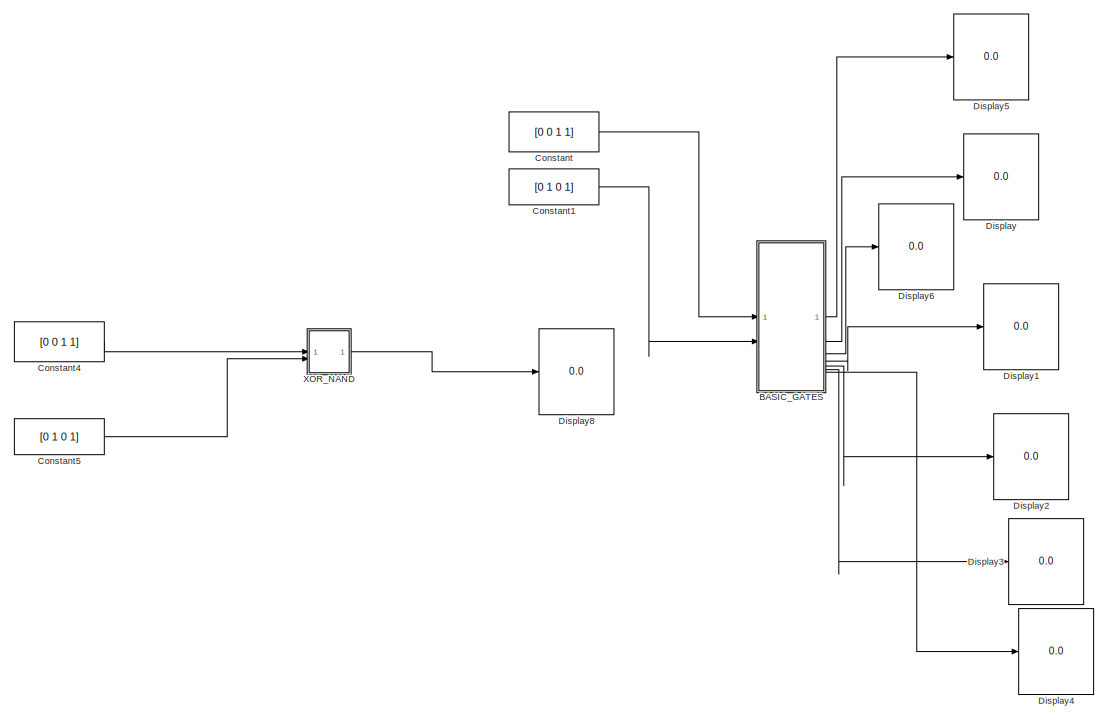
[diagram: root canvas - part 1/5, top left region]
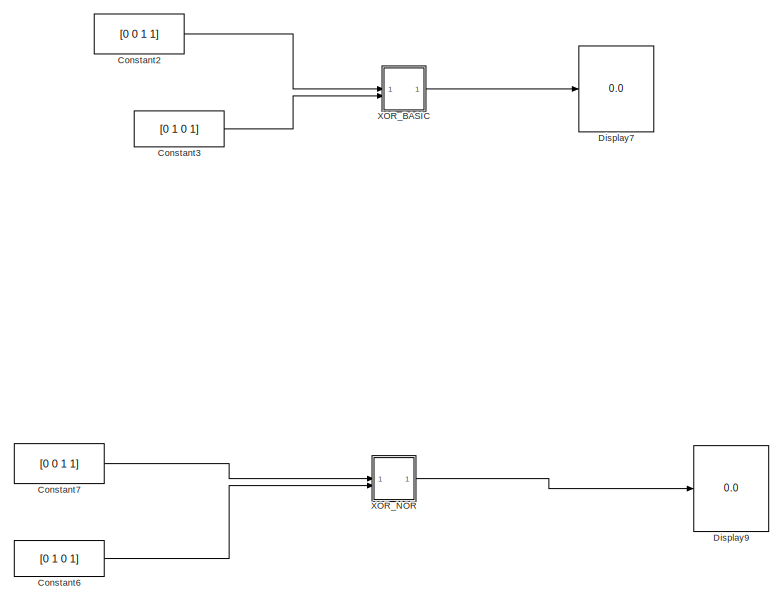
[diagram: root canvas - part 2/5, top center region]
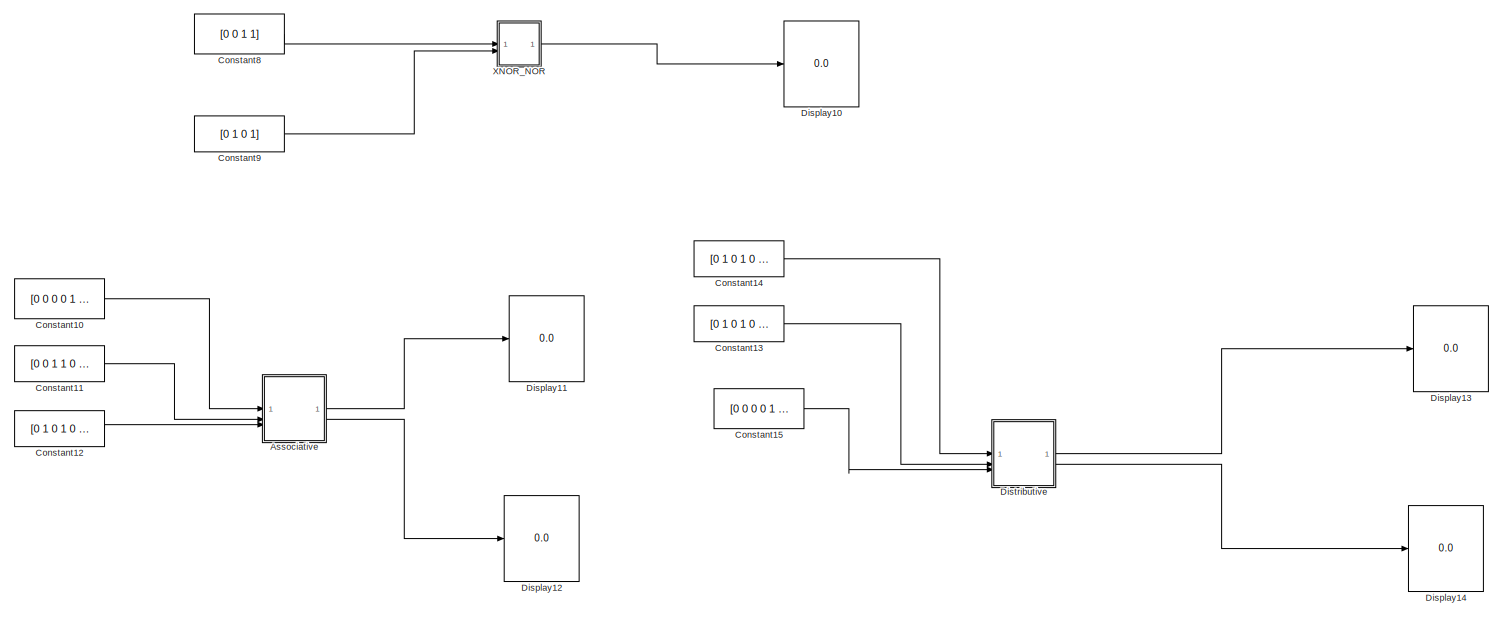
[diagram: root canvas - part 3/5, middle right region]
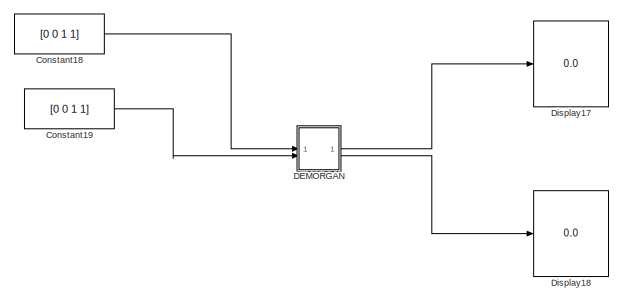
[diagram: root canvas - part 4/5, bottom center region]
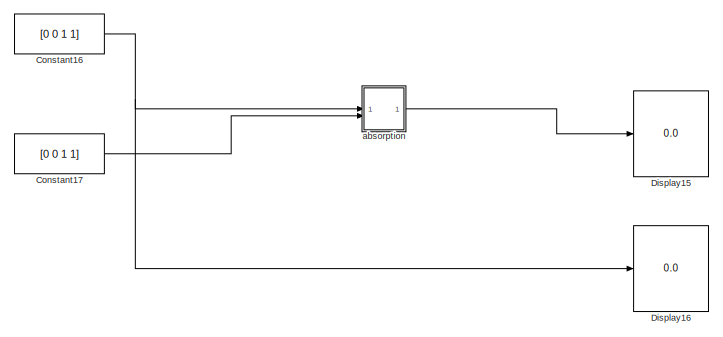
[diagram: root canvas - part 5/5, bottom left region]
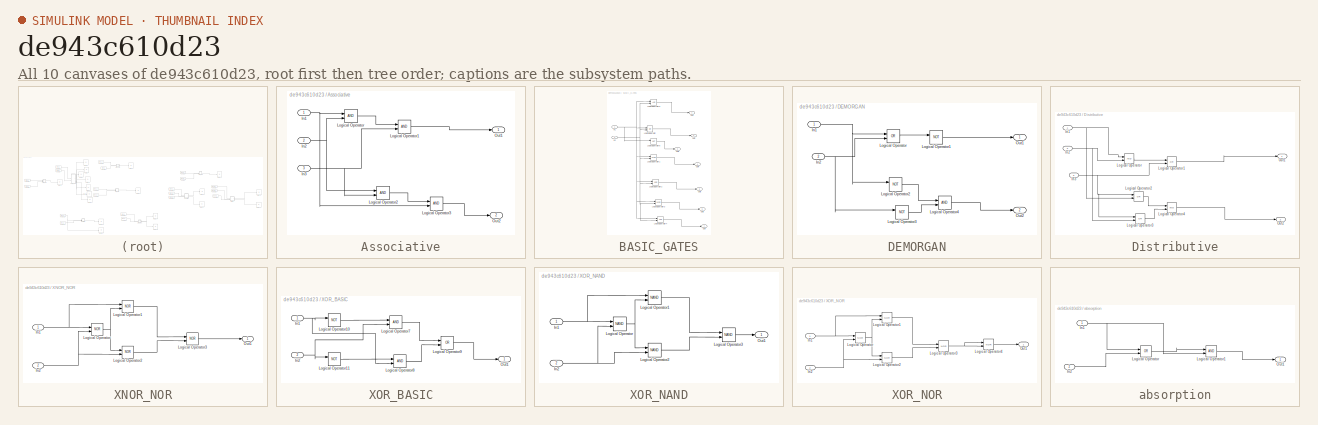
[diagram: thumbnail index - all 10 canvases of the model, root first then tree order]
MODEL slx_de943c610d23
KIND model
CONFIG AbsTol = auto
CONFIG EnableMultiTasking = off
CONFIG FixedStep = auto
CONFIG MaxStep = auto
CONFIG MinStep = auto
CONFIG RelTol = 1e-3
CONFIG SampleTimeConstraint = Unconstrained
CONFIG SolverName = VariableStepAuto
CONFIG StartTime = 0.0
CONFIG StopTime = 10.0
BLOCK [SubSystem] Associative
BLOCK [Inport] Associative/In1
BLOCK [Inport] Associative/In2
  Port = 2
BLOCK [Inport] Associative/In3
  Port = 3
BLOCK [Logic] Associative/Logical Operator
  AllPortsSameDT = off
  OutDataTypeStr = boolean
BLOCK [Logic] Associative/Logical Operator1
  AllPortsSameDT = off
  OutDataTypeStr = boolean
BLOCK [Logic] Associative/Logical Operator2
  AllPortsSameDT = off
  OutDataTypeStr = boolean
BLOCK [Logic] Associative/Logical Operator3
  AllPortsSameDT = off
  OutDataTypeStr = boolean
BLOCK [Outport] Associative/Out1
BLOCK [Outport] Associative/Out2
  Port = 2
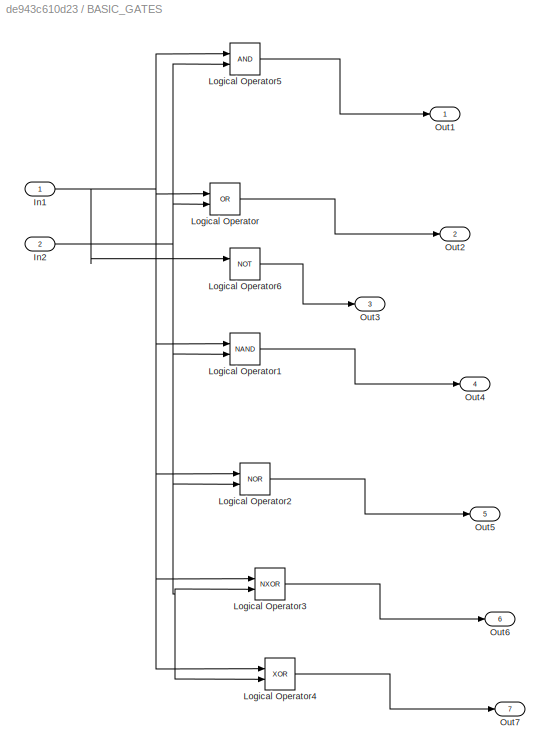
BLOCK [SubSystem] BASIC_GATES
BLOCK [Inport] BASIC_GATES/In1
BLOCK [Inport] BASIC_GATES/In2
  Port = 2
BLOCK [Logic] BASIC_GATES/Logical Operator
  AllPortsSameDT = off
  IconShape = distinctive
  Operator = OR
  OutDataTypeStr = boolean
BLOCK [Logic] BASIC_GATES/Logical Operator1
  AllPortsSameDT = off
  IconShape = distinctive
  Operator = NAND
  OutDataTypeStr = boolean
BLOCK [Logic] BASIC_GATES/Logical Operator2
  AllPortsSameDT = off
  IconShape = distinctive
  Operator = NOR
  OutDataTypeStr = boolean
BLOCK [Logic] BASIC_GATES/Logical Operator3
  AllPortsSameDT = off
  IconShape = distinctive
  Operator = NXOR
  OutDataTypeStr = boolean
BLOCK [Logic] BASIC_GATES/Logical Operator4
  AllPortsSameDT = off
  IconShape = distinctive
  Operator = XOR
  OutDataTypeStr = boolean
BLOCK [Logic] BASIC_GATES/Logical Operator5
  AllPortsSameDT = off
  IconShape = distinctive
  OutDataTypeStr = boolean
BLOCK [Logic] BASIC_GATES/Logical Operator6
  AllPortsSameDT = off
  IconShape = distinctive
  Operator = NOT
  OutDataTypeStr = boolean
BLOCK [Outport] BASIC_GATES/Out1
BLOCK [Outport] BASIC_GATES/Out2
  Port = 2
BLOCK [Outport] BASIC_GATES/Out3
  Port = 3
BLOCK [Outport] BASIC_GATES/Out4
  Port = 4
BLOCK [Outport] BASIC_GATES/Out5
  Port = 5
BLOCK [Outport] BASIC_GATES/Out6
  Port = 6
BLOCK [Outport] BASIC_GATES/Out7
  Port = 7
BLOCK [Constant] Constant
  Value = [0 0 1 1]
BLOCK [Constant] Constant1
  Value = [0 1 0 1]
BLOCK [Constant] Constant10
  Value = [0 0 0 0 1 1 1 1]
BLOCK [Constant] Constant11
  Value = [0 0 1 1 0 0 1 1]
BLOCK [Constant] Constant12
  Value = [0 1 0 1 0 1 0 1]
BLOCK [Constant] Constant13
  Value = [0 1 0 1 0 1 0 1]
BLOCK [Constant] Constant14
  Value = [0 1 0 1 0 1 0 1]
BLOCK [Constant] Constant15
  Value = [0 0 0 0 1 1 1 1]
BLOCK [Constant] Constant16
  Value = [0 0 1 1]
BLOCK [Constant] Constant17
  Value = [0 0 1 1]
BLOCK [Constant] Constant18
  Value = [0 0 1 1]
BLOCK [Constant] Constant19
  Value = [0 0 1 1]
BLOCK [Constant] Constant2
  Value = [0 0 1 1]
BLOCK [Constant] Constant3
  Value = [0 1 0 1]
BLOCK [Constant] Constant4
  Value = [0 0 1 1]
BLOCK [Constant] Constant5
  Value = [0 1 0 1]
BLOCK [Constant] Constant6
  Value = [0 1 0 1]
BLOCK [Constant] Constant7
  Value = [0 0 1 1]
BLOCK [Constant] Constant8
  Value = [0 0 1 1]
BLOCK [Constant] Constant9
  Value = [0 1 0 1]
BLOCK [SubSystem] DEMORGAN
BLOCK [Inport] DEMORGAN/In1
BLOCK [Inport] DEMORGAN/In2
  Port = 2
BLOCK [Logic] DEMORGAN/Logical Operator
  AllPortsSameDT = off
  Operator = OR
  OutDataTypeStr = boolean
BLOCK [Logic] DEMORGAN/Logical Operator1
  AllPortsSameDT = off
  Operator = NOT
  OutDataTypeStr = boolean
BLOCK [Logic] DEMORGAN/Logical Operator2
  AllPortsSameDT = off
  Operator = NOT
  OutDataTypeStr = boolean
BLOCK [Logic] DEMORGAN/Logical Operator3
  AllPortsSameDT = off
  Operator = NOT
  OutDataTypeStr = boolean
BLOCK [Logic] DEMORGAN/Logical Operator4
  AllPortsSameDT = off
  OutDataTypeStr = boolean
BLOCK [Outport] DEMORGAN/Out1
BLOCK [Outport] DEMORGAN/Out2
  Port = 2
BLOCK [Display] Display
  Decimation = 1
BLOCK [Display] Display1
  Decimation = 1
BLOCK [Display] Display10
  Decimation = 1
BLOCK [Display] Display11
  Decimation = 1
BLOCK [Display] Display12
  Decimation = 1
BLOCK [Display] Display13
  Decimation = 1
BLOCK [Display] Display14
  Decimation = 1
BLOCK [Display] Display15
  Decimation = 1
BLOCK [Display] Display16
  Decimation = 1
BLOCK [Display] Display17
  Decimation = 1
BLOCK [Display] Display18
  Decimation = 1
BLOCK [Display] Display2
  Decimation = 1
BLOCK [Display] Display3
  Decimation = 1
BLOCK [Display] Display4
  Decimation = 1
BLOCK [Display] Display5
  Decimation = 1
BLOCK [Display] Display6
  Decimation = 1
BLOCK [Display] Display7
  Decimation = 1
BLOCK [Display] Display8
  Decimation = 1
BLOCK [Display] Display9
  Decimation = 1
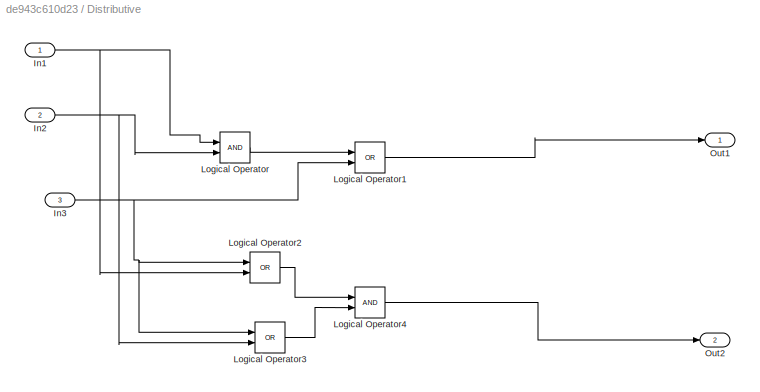
BLOCK [SubSystem] Distributive
BLOCK [Inport] Distributive/In1
BLOCK [Inport] Distributive/In2
  Port = 2
BLOCK [Inport] Distributive/In3
  Port = 3
BLOCK [Logic] Distributive/Logical Operator
  AllPortsSameDT = off
  OutDataTypeStr = boolean
BLOCK [Logic] Distributive/Logical Operator1
  AllPortsSameDT = off
  Operator = OR
  OutDataTypeStr = boolean
BLOCK [Logic] Distributive/Logical Operator2
  AllPortsSameDT = off
  Operator = OR
  OutDataTypeStr = boolean
BLOCK [Logic] Distributive/Logical Operator3
  AllPortsSameDT = off
  Operator = OR
  OutDataTypeStr = boolean
BLOCK [Logic] Distributive/Logical Operator4
  AllPortsSameDT = off
  OutDataTypeStr = boolean
BLOCK [Outport] Distributive/Out1
BLOCK [Outport] Distributive/Out2
  Port = 2
BLOCK [SubSystem] XNOR_NOR
BLOCK [Inport] XNOR_NOR/In1
BLOCK [Inport] XNOR_NOR/In2
  Port = 2
BLOCK [Logic] XNOR_NOR/Logical Operator
  AllPortsSameDT = off
  IconShape = distinctive
  Operator = NOR
  OutDataTypeStr = boolean
BLOCK [Logic] XNOR_NOR/Logical Operator1
  AllPortsSameDT = off
  IconShape = distinctive
  Operator = NOR
  OutDataTypeStr = boolean
BLOCK [Logic] XNOR_NOR/Logical Operator2
  AllPortsSameDT = off
  IconShape = distinctive
  Operator = NOR
  OutDataTypeStr = boolean
BLOCK [Logic] XNOR_NOR/Logical Operator3
  AllPortsSameDT = off
  IconShape = distinctive
  Operator = NOR
  OutDataTypeStr = boolean
BLOCK [Outport] XNOR_NOR/Out1
BLOCK [SubSystem] XOR_BASIC
BLOCK [Inport] XOR_BASIC/In1
BLOCK [Inport] XOR_BASIC/In2
  Port = 2
BLOCK [Logic] XOR_BASIC/Logical Operator10
  AllPortsSameDT = off
  IconShape = distinctive
  Operator = NOT
  OutDataTypeStr = boolean
BLOCK [Logic] XOR_BASIC/Logical Operator11
  AllPortsSameDT = off
  IconShape = distinctive
  Operator = NOT
  OutDataTypeStr = boolean
BLOCK [Logic] XOR_BASIC/Logical Operator7
  AllPortsSameDT = off
  IconShape = distinctive
  OutDataTypeStr = boolean
BLOCK [Logic] XOR_BASIC/Logical Operator8
  AllPortsSameDT = off
  IconShape = distinctive
  OutDataTypeStr = boolean
BLOCK [Logic] XOR_BASIC/Logical Operator9
  AllPortsSameDT = off
  IconShape = distinctive
  Operator = OR
  OutDataTypeStr = boolean
BLOCK [Outport] XOR_BASIC/Out1
BLOCK [SubSystem] XOR_NAND
BLOCK [Inport] XOR_NAND/In1
BLOCK [Inport] XOR_NAND/In2
  Port = 2
BLOCK [Logic] XOR_NAND/Logical Operator
  AllPortsSameDT = off
  IconShape = distinctive
  Operator = NAND
  OutDataTypeStr = boolean
BLOCK [Logic] XOR_NAND/Logical Operator1
  AllPortsSameDT = off
  IconShape = distinctive
  Operator = NAND
  OutDataTypeStr = boolean
BLOCK [Logic] XOR_NAND/Logical Operator2
  AllPortsSameDT = off
  IconShape = distinctive
  Operator = NAND
  OutDataTypeStr = boolean
BLOCK [Logic] XOR_NAND/Logical Operator3
  AllPortsSameDT = off
  IconShape = distinctive
  Operator = NAND
  OutDataTypeStr = boolean
BLOCK [Outport] XOR_NAND/Out1
BLOCK [SubSystem] XOR_NOR
BLOCK [Inport] XOR_NOR/In1
BLOCK [Inport] XOR_NOR/In2
  Port = 2
BLOCK [Logic] XOR_NOR/Logical Operator
  AllPortsSameDT = off
  IconShape = distinctive
  Operator = NOR
  OutDataTypeStr = boolean
BLOCK [Logic] XOR_NOR/Logical Operator1
  AllPortsSameDT = off
  IconShape = distinctive
  Operator = NOR
  OutDataTypeStr = boolean
BLOCK [Logic] XOR_NOR/Logical Operator2
  AllPortsSameDT = off
  IconShape = distinctive
  Operator = NOR
  OutDataTypeStr = boolean
BLOCK [Logic] XOR_NOR/Logical Operator3
  AllPortsSameDT = off
  IconShape = distinctive
  Operator = NOR
  OutDataTypeStr = boolean
BLOCK [Logic] XOR_NOR/Logical Operator4
  AllPortsSameDT = off
  IconShape = distinctive
  Operator = NOR
  OutDataTypeStr = boolean
BLOCK [Outport] XOR_NOR/Out1
BLOCK [SubSystem] absorption
BLOCK [Inport] absorption/In1
BLOCK [Inport] absorption/In2
  Port = 2
BLOCK [Logic] absorption/Logical Operator
  AllPortsSameDT = off
  Operator = OR
  OutDataTypeStr = boolean
BLOCK [Logic] absorption/Logical Operator1
  AllPortsSameDT = off
  OutDataTypeStr = boolean
BLOCK [Outport] absorption/Out1
NET Associative/In1:1 -> Associative/Logical Operator3:2, Associative/Logical Operator:1
NET Associative/In2:1 -> Associative/Logical Operator2:1, Associative/Logical Operator:2
NET Associative/In3:1 -> Associative/Logical Operator1:2, Associative/Logical Operator2:2
LINE Associative/Logical Operator1:1 -> Associative/Out1:1
LINE Associative/Logical Operator2:1 -> Associative/Logical Operator3:1
LINE Associative/Logical Operator3:1 -> Associative/Out2:1
LINE Associative/Logical Operator:1 -> Associative/Logical Operator1:1
LINE Associative:1 -> Display11:1
LINE Associative:2 -> Display12:1
NET BASIC_GATES/In1:1 -> BASIC_GATES/Logical Operator1:1, BASIC_GATES/Logical Operator2:1, BASIC_GATES/Logical Operator3:1, BASIC_GATES/Logical Operator4:1, BASIC_GATES/Logical Operator5:1, BASIC_GATES/Logical Operator6:1, BASIC_GATES/Logical Operator:1
NET BASIC_GATES/In2:1 -> BASIC_GATES/Logical Operator1:2, BASIC_GATES/Logical Operator2:2, BASIC_GATES/Logical Operator3:2, BASIC_GATES/Logical Operator4:2, BASIC_GATES/Logical Operator5:2, BASIC_GATES/Logical Operator:2
LINE BASIC_GATES/Logical Operator1:1 -> BASIC_GATES/Out4:1
LINE BASIC_GATES/Logical Operator2:1 -> BASIC_GATES/Out5:1
LINE BASIC_GATES/Logical Operator3:1 -> BASIC_GATES/Out6:1
LINE BASIC_GATES/Logical Operator4:1 -> BASIC_GATES/Out7:1
LINE BASIC_GATES/Logical Operator5:1 -> BASIC_GATES/Out1:1
LINE BASIC_GATES/Logical Operator6:1 -> BASIC_GATES/Out3:1
LINE BASIC_GATES/Logical Operator:1 -> BASIC_GATES/Out2:1
LINE BASIC_GATES:1 -> Display5:1
LINE BASIC_GATES:2 -> Display:1
LINE BASIC_GATES:3 -> Display6:1
LINE BASIC_GATES:4 -> Display1:1
LINE BASIC_GATES:5 -> Display2:1
LINE BASIC_GATES:6 -> Display3:1
LINE BASIC_GATES:7 -> Display4:1
LINE Constant10:1 -> Associative:1
LINE Constant11:1 -> Associative:2
LINE Constant12:1 -> Associative:3
LINE Constant13:1 -> Distributive:2
LINE Constant14:1 -> Distributive:1
LINE Constant15:1 -> Distributive:3
NET Constant16:1 -> Display16:1, absorption:1
LINE Constant17:1 -> absorption:2
LINE Constant18:1 -> DEMORGAN:1
LINE Constant19:1 -> DEMORGAN:2
LINE Constant1:1 -> BASIC_GATES:2
LINE Constant2:1 -> XOR_BASIC:1
LINE Constant3:1 -> XOR_BASIC:2
LINE Constant4:1 -> XOR_NAND:1
LINE Constant5:1 -> XOR_NAND:2
LINE Constant6:1 -> XOR_NOR:2
LINE Constant7:1 -> XOR_NOR:1
LINE Constant8:1 -> XNOR_NOR:1
LINE Constant9:1 -> XNOR_NOR:2
LINE Constant:1 -> BASIC_GATES:1
NET DEMORGAN/In1:1 -> DEMORGAN/Logical Operator2:1, DEMORGAN/Logical Operator:1
NET DEMORGAN/In2:1 -> DEMORGAN/Logical Operator3:1, DEMORGAN/Logical Operator:2
LINE DEMORGAN/Logical Operator1:1 -> DEMORGAN/Out1:1
LINE DEMORGAN/Logical Operator2:1 -> DEMORGAN/Logical Operator4:1
LINE DEMORGAN/Logical Operator3:1 -> DEMORGAN/Logical Operator4:2
LINE DEMORGAN/Logical Operator4:1 -> DEMORGAN/Out2:1
LINE DEMORGAN/Logical Operator:1 -> DEMORGAN/Logical Operator1:1
LINE DEMORGAN:1 -> Display17:1
LINE DEMORGAN:2 -> Display18:1
NET Distributive/In1:1 -> Distributive/Logical Operator2:2, Distributive/Logical Operator:1
NET Distributive/In2:1 -> Distributive/Logical Operator3:2, Distributive/Logical Operator:2
NET Distributive/In3:1 -> Distributive/Logical Operator1:2, Distributive/Logical Operator2:1, Distributive/Logical Operator3:1
LINE Distributive/Logical Operator1:1 -> Distributive/Out1:1
LINE Distributive/Logical Operator2:1 -> Distributive/Logical Operator4:1
LINE Distributive/Logical Operator3:1 -> Distributive/Logical Operator4:2
LINE Distributive/Logical Operator4:1 -> Distributive/Out2:1
LINE Distributive/Logical Operator:1 -> Distributive/Logical Operator1:1
LINE Distributive:1 -> Display13:1
LINE Distributive:2 -> Display14:1
NET XNOR_NOR/In1:1 -> XNOR_NOR/Logical Operator1:1, XNOR_NOR/Logical Operator:1
NET XNOR_NOR/In2:1 -> XNOR_NOR/Logical Operator2:2, XNOR_NOR/Logical Operator:2
LINE XNOR_NOR/Logical Operator1:1 -> XNOR_NOR/Logical Operator3:1
LINE XNOR_NOR/Logical Operator2:1 -> XNOR_NOR/Logical Operator3:2
LINE XNOR_NOR/Logical Operator3:1 -> XNOR_NOR/Out1:1
NET XNOR_NOR/Logical Operator:1 -> XNOR_NOR/Logical Operator1:2, XNOR_NOR/Logical Operator2:1
LINE XNOR_NOR:1 -> Display10:1
NET XOR_BASIC/In1:1 -> XOR_BASIC/Logical Operator10:1, XOR_BASIC/Logical Operator8:2
NET XOR_BASIC/In2:1 -> XOR_BASIC/Logical Operator11:1, XOR_BASIC/Logical Operator7:2
LINE XOR_BASIC/Logical Operator10:1 -> XOR_BASIC/Logical Operator7:1
LINE XOR_BASIC/Logical Operator11:1 -> XOR_BASIC/Logical Operator8:1
LINE XOR_BASIC/Logical Operator7:1 -> XOR_BASIC/Logical Operator9:1
LINE XOR_BASIC/Logical Operator8:1 -> XOR_BASIC/Logical Operator9:2
LINE XOR_BASIC/Logical Operator9:1 -> XOR_BASIC/Out1:1
LINE XOR_BASIC:1 -> Display7:1
NET XOR_NAND/In1:1 -> XOR_NAND/Logical Operator1:1, XOR_NAND/Logical Operator:1
NET XOR_NAND/In2:1 -> XOR_NAND/Logical Operator2:2, XOR_NAND/Logical Operator:2
LINE XOR_NAND/Logical Operator1:1 -> XOR_NAND/Logical Operator3:1
LINE XOR_NAND/Logical Operator2:1 -> XOR_NAND/Logical Operator3:2
LINE XOR_NAND/Logical Operator3:1 -> XOR_NAND/Out1:1
NET XOR_NAND/Logical Operator:1 -> XOR_NAND/Logical Operator1:2, XOR_NAND/Logical Operator2:1
LINE XOR_NAND:1 -> Display8:1
NET XOR_NOR/In1:1 -> XOR_NOR/Logical Operator1:1, XOR_NOR/Logical Operator:1
NET XOR_NOR/In2:1 -> XOR_NOR/Logical Operator2:2, XOR_NOR/Logical Operator:2
LINE XOR_NOR/Logical Operator1:1 -> XOR_NOR/Logical Operator3:1
LINE XOR_NOR/Logical Operator2:1 -> XOR_NOR/Logical Operator3:2
NET XOR_NOR/Logical Operator3:1 -> XOR_NOR/Logical Operator4:1, XOR_NOR/Logical Operator4:2
LINE XOR_NOR/Logical Operator4:1 -> XOR_NOR/Out1:1
NET XOR_NOR/Logical Operator:1 -> XOR_NOR/Logical Operator1:2, XOR_NOR/Logical Operator2:1
LINE XOR_NOR:1 -> Display9:1
NET absorption/In1:1 -> absorption/Logical Operator1:2, absorption/Logical Operator:1
LINE absorption/In2:1 -> absorption/Logical Operator:2
LINE absorption/Logical Operator1:1 -> absorption/Out1:1
LINE absorption/Logical Operator:1 -> absorption/Logical Operator1:1
LINE absorption:1 -> Display15:1
note: NET lines group one-source signal fan-out (src -> all destinations, sorted); 1:1 wires keep LINE
